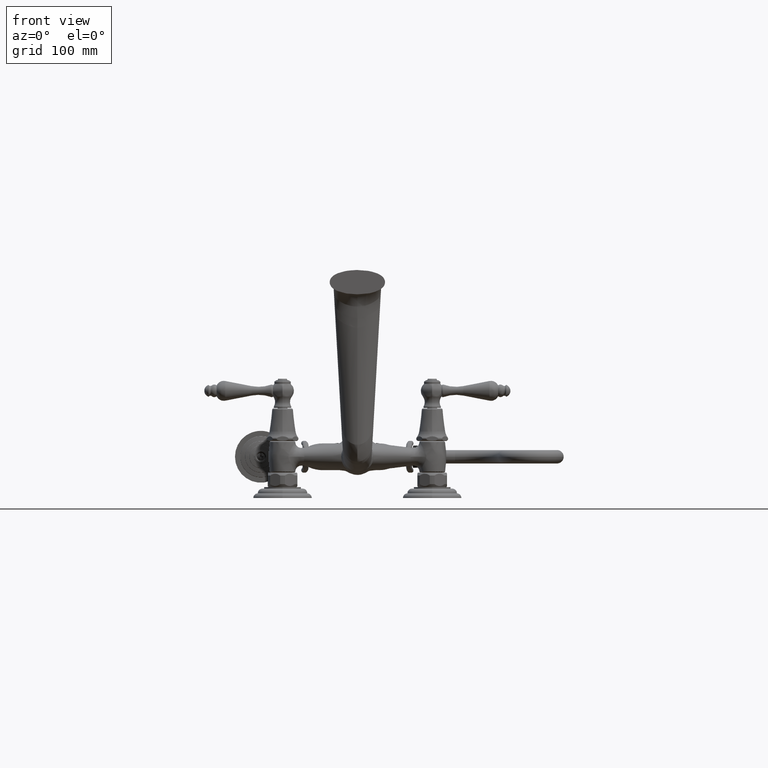
[diagram: clean part render]
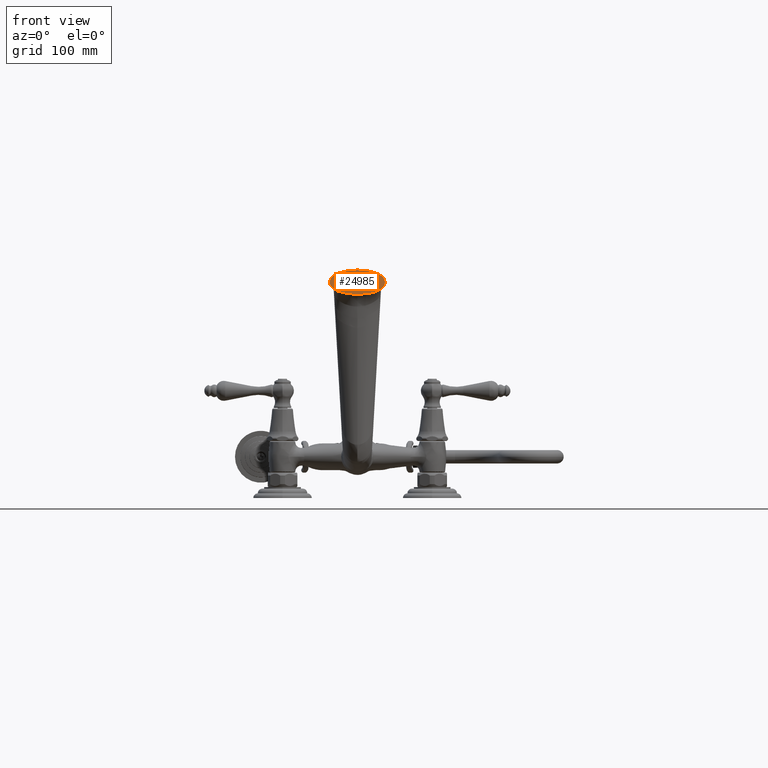
[diagram: same view with one face highlighted and labeled with its STEP entity id]
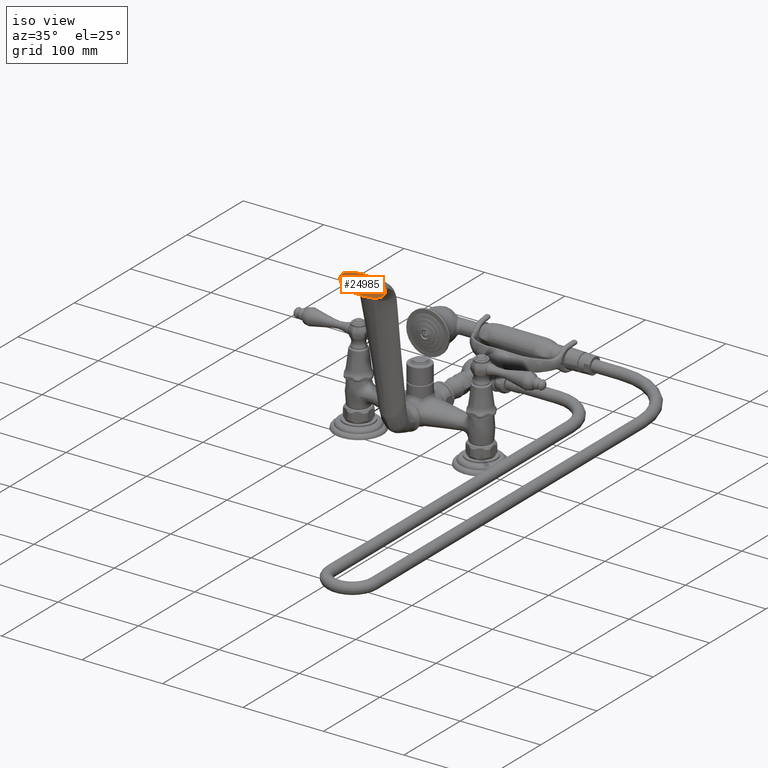
[diagram: same view with one face highlighted and labeled with its STEP entity id]
A machine part, front view. The second image highlights one B-rep face of the part: STEP entity #24985.
A second angle (iso view) of the same face is appended — the face is thin or edge-on in the first view.
In plain terms, the highlighted planar face has unit normal (-0, -1, 0).
Its self-contained STEP definition (entity closure, byte-faithful):
#1633=CARTESIAN_POINT('',(0.E0,-4.018219608768E0,7.4875E0));
#1634=CARTESIAN_POINT('',(1.145705412687E-1,-4.018219608768E0,7.4875E0));
#1635=CARTESIAN_POINT('',(2.770870818757E-1,-4.018219608768E0,
7.477530705318E0));
#1636=CARTESIAN_POINT('',(4.784828983717E-1,-4.018219608768E0,
7.446957646900E0));
#1637=CARTESIAN_POINT('',(6.228434812349E-1,-4.018219608768E0,
7.414538910767E0));
#1638=CARTESIAN_POINT('',(7.603363669806E-1,-4.018219608768E0,
7.370928259435E0));
#1639=CARTESIAN_POINT('',(8.700523918146E-1,-4.018219608768E0,
7.321575942116E0));
#1640=CARTESIAN_POINT('',(9.438095931145E-1,-4.018219608768E0,
7.274944642148E0));
#1641=CARTESIAN_POINT('',(9.858375419863E-1,-4.018219608768E0,
7.241946869991E0));
#1642=CARTESIAN_POINT('',(1.016006494526E0,-4.018219608768E0,7.214010341276E0));
#1643=CARTESIAN_POINT('',(1.046975724764E0,-4.018219608768E0,7.179051184174E0));
#1644=CARTESIAN_POINT('',(1.070882928838E0,-4.018219608768E0,7.143349161337E0));
#1645=CARTESIAN_POINT('',(1.088147087234E0,-4.018219608768E0,7.107903114323E0));
#1646=CARTESIAN_POINT('',(1.098880533812E0,-4.018219608768E0,7.078783815732E0));
#1647=CARTESIAN_POINT('',(1.107554965166E0,-4.018219608768E0,7.042981279996E0));
#1648=CARTESIAN_POINT('',(1.11E0,-4.018219608768E0,7.014880894259E0));
#1649=CARTESIAN_POINT('',(1.11E0,-4.018219608768E0,7.E0));
#1675=CARTESIAN_POINT('',(1.11E0,-4.018219608768E0,7.E0));
#1676=CARTESIAN_POINT('',(1.11E0,-4.018219608768E0,6.986263789915E0));
#1677=CARTESIAN_POINT('',(1.107759729550E0,-4.018219608768E0,6.958121187940E0));
#1678=CARTESIAN_POINT('',(1.099389287832E0,-4.018219608768E0,6.922916392895E0));
#1679=CARTESIAN_POINT('',(1.088486047576E0,-4.018219608768E0,6.892871531604E0));
#1680=CARTESIAN_POINT('',(1.071930700439E0,-4.018219608768E0,6.858595609934E0));
#1681=CARTESIAN_POINT('',(1.047837945254E0,-4.018219608768E0,6.822009994456E0));
#1682=CARTESIAN_POINT('',(1.017616518770E0,-4.018219608768E0,6.787648161510E0));
#1683=CARTESIAN_POINT('',(9.866876990796E-1,-4.018219608768E0,
6.758767080657E0));
#1684=CARTESIAN_POINT('',(9.446505470233E-1,-4.018219608768E0,
6.725585474317E0));
#1685=CARTESIAN_POINT('',(8.700572557677E-1,-4.018219608768E0,
6.678428242078E0));
#1686=CARTESIAN_POINT('',(7.603347146329E-1,-4.018219608768E0,
6.629070319140E0));
#1687=CARTESIAN_POINT('',(6.228439234125E-1,-4.018219608768E0,
6.585461469615E0));
#1688=CARTESIAN_POINT('',(4.784827820092E-1,-4.018219608768E0,6.553042253E0));
#1689=CARTESIAN_POINT('',(2.770871516931E-1,-4.018219608768E0,
6.522469354742E0));
#1690=CARTESIAN_POINT('',(1.145705412687E-1,-4.018219608768E0,6.5125E0));
#1691=CARTESIAN_POINT('',(6.097794581853E-14,-4.018219608768E0,6.5125E0));
#1721=CARTESIAN_POINT('',(6.097794581853E-14,-4.018219608768E0,6.5125E0));
#1722=CARTESIAN_POINT('',(-1.432131765852E-2,-4.018219608768E0,6.5125E0));
#1723=CARTESIAN_POINT('',(-4.277326461604E-2,-4.018219608768E0,
6.512707862590E0));
#1724=CARTESIAN_POINT('',(-9.892708860792E-2,-4.018219608768E0,
6.513941237520E0));
#1725=CARTESIAN_POINT('',(-1.677315502505E-1,-4.018219608768E0,
6.516989495161E0));
#1726=CARTESIAN_POINT('',(-2.481633762649E-1,-4.018219608768E0,
6.522974218486E0));
#1727=CARTESIAN_POINT('',(-3.525689562277E-1,-4.018219608768E0,
6.533930911040E0));
#1728=CARTESIAN_POINT('',(-4.522959853010E-1,-4.018219608768E0,
6.549065253578E0));
#1729=CARTESIAN_POINT('',(-5.497198829261E-1,-4.018219608768E0,
6.569040853971E0));
#1730=CARTESIAN_POINT('',(-6.200846243251E-1,-4.018219608768E0,
6.586345948137E0));
#1731=CARTESIAN_POINT('',(-6.907349403924E-1,-4.018219608768E0,
6.607001098413E0));
#1732=CARTESIAN_POINT('',(-7.577932942943E-1,-4.018219608768E0,
6.630319380358E0));
#1733=CARTESIAN_POINT('',(-8.253059788291E-1,-4.018219608768E0,
6.658338596486E0));
#1734=CARTESIAN_POINT('',(-8.886828541604E-1,-4.018219608768E0,
6.690396499186E0));
#1735=CARTESIAN_POINT('',(-9.405071818145E-1,-4.018219608768E0,
6.722954305989E0));
#1736=CARTESIAN_POINT('',(-9.808358472792E-1,-4.018219608768E0,
6.753847383102E0));
#1737=CARTESIAN_POINT('',(-1.011261133725E0,-4.018219608768E0,
6.781292956388E0));
#1738=CARTESIAN_POINT('',(-1.041934555282E0,-4.018219608768E0,
6.814624948968E0));
#1739=CARTESIAN_POINT('',(-1.066681365483E0,-4.018219608768E0,
6.849790792371E0));
#1740=CARTESIAN_POINT('',(-1.084545317290E0,-4.018219608768E0,
6.883921336340E0));
#1741=CARTESIAN_POINT('',(-1.094679346892E0,-4.018219608768E0,
6.909206048101E0));
#1742=CARTESIAN_POINT('',(-1.101449147945E0,-4.018219608768E0,
6.931923747021E0));
#1743=CARTESIAN_POINT('',(-1.107647116403E0,-4.018219608768E0,
6.959169029586E0));
#1744=CARTESIAN_POINT('',(-1.11E0,-4.018219608768E0,6.983261017761E0));
#1745=CARTESIAN_POINT('',(-1.11E0,-4.018219608768E0,7.E0));
#1775=CARTESIAN_POINT('',(-1.11E0,-4.018219608768E0,7.E0));
#1776=CARTESIAN_POINT('',(-1.11E0,-4.018219608768E0,7.012152919566E0));
#1777=CARTESIAN_POINT('',(-1.108292130878E0,-4.018219608768E0,
7.037012860235E0));
#1778=CARTESIAN_POINT('',(-1.101214243976E0,-4.018219608768E0,
7.070496512515E0));
#1779=CARTESIAN_POINT('',(-1.091681637468E0,-4.018219608768E0,
7.099171235816E0));
#1780=CARTESIAN_POINT('',(-1.079955248057E0,-4.018219608768E0,
7.125365689233E0));
#1781=CARTESIAN_POINT('',(-1.067142891886E0,-4.018219608768E0,
7.148304484685E0));
#1782=CARTESIAN_POINT('',(-1.047891687511E0,-4.018219608768E0,
7.177341464477E0));
#1783=CARTESIAN_POINT('',(-1.022409426175E0,-4.018219608768E0,
7.207367084167E0));
#1784=CARTESIAN_POINT('',(-9.917469560489E-1,-4.018219608768E0,
7.236848549064E0));
#1785=CARTESIAN_POINT('',(-9.480676810360E-1,-4.018219608768E0,
7.272219521134E0));
#1786=CARTESIAN_POINT('',(-8.938604036552E-1,-4.018219608768E0,
7.306736893693E0));
#1787=CARTESIAN_POINT('',(-8.270744142908E-1,-4.018219608768E0,
7.340873214280E0));
#1788=CARTESIAN_POINT('',(-7.613747307546E-1,-4.018219608768E0,
7.368308999696E0));
#1789=CARTESIAN_POINT('',(-6.925785279649E-1,-4.018219608768E0,
7.392414955120E0));
#1790=CARTESIAN_POINT('',(-6.238416211977E-1,-4.018219608768E0,
7.412640238414E0));
#1791=CARTESIAN_POINT('',(-5.516448784391E-1,-4.018219608768E0,
7.430526870994E0));
#1792=CARTESIAN_POINT('',(-4.543107997242E-1,-4.018219608768E0,
7.450628896697E0));
#1793=CARTESIAN_POINT('',(-3.525689361314E-1,-4.018219608768E0,
7.466069105648E0));
#1794=CARTESIAN_POINT('',(-2.481633800557E-1,-4.018219608768E0,
7.477025778366E0));
#1795=CARTESIAN_POINT('',(-1.677315492120E-1,-4.018219608768E0,
7.483010505701E0));
#1796=CARTESIAN_POINT('',(-9.892708873776E-2,-4.018219608768E0,
7.486058762372E0));
#1797=CARTESIAN_POINT('',(-4.277326459005E-2,-4.018219608768E0,
7.487292137432E0));
#1798=CARTESIAN_POINT('',(-1.432131765859E-2,-4.018219608768E0,7.4875E0));
#1799=CARTESIAN_POINT('',(0.E0,-4.018219608768E0,7.4875E0));
#18766=VERTEX_POINT('',#1633);
#18767=VERTEX_POINT('',#1649);
#18768=VERTEX_POINT('',#1691);
#18769=VERTEX_POINT('',#1745);
#24971=CARTESIAN_POINT('',(-5.502482966980E-8,-4.018219608768E0,
7.000000021413E0));
#24972=DIRECTION('',(-2.292250437718E-14,-1.E0,2.896161885959E-14));
#24973=DIRECTION('',(6.606362154512E-8,2.896161734524E-14,1.E0));
#24974=AXIS2_PLACEMENT_3D('',#24971,#24972,#24973);
#24975=PLANE('',#24974);
#24976=ORIENTED_EDGE('',*,*,#24961,.T.);
#24978=ORIENTED_EDGE('',*,*,#24977,.T.);
#24980=ORIENTED_EDGE('',*,*,#24979,.T.);
#24982=ORIENTED_EDGE('',*,*,#24981,.T.);
#24983=EDGE_LOOP('',(#24976,#24978,#24980,#24982));
#24984=FACE_OUTER_BOUND('',#24983,.F.);
#24985=ADVANCED_FACE('',(#24984),#24975,.T.);
#1650=B_SPLINE_CURVE_WITH_KNOTS('',3,(#1633,#1634,#1635,#1636,#1637,#1638,#1639,
#1640,#1641,#1642,#1643,#1644,#1645,#1646,#1647,#1648,#1649),.UNSPECIFIED.,.F.,
.F.,(4,1,1,1,1,1,1,1,1,1,1,1,1,1,4),(0.E0,2.5E-1,3.75E-1,5.E-1,6.25E-1,7.5E-1,
8.125E-1,8.425E-1,8.75E-1,9.05E-1,9.375E-1,9.525E-1,9.6875E-1,9.8375E-1,1.E0),
.UNSPECIFIED.);
#1692=B_SPLINE_CURVE_WITH_KNOTS('',3,(#1675,#1676,#1677,#1678,#1679,#1680,#1681,
#1682,#1683,#1684,#1685,#1686,#1687,#1688,#1689,#1690,#1691),.UNSPECIFIED.,.F.,
.F.,(4,1,1,1,1,1,1,1,1,1,1,1,1,1,4),(0.E0,1.5E-2,3.125E-2,4.625E-2,6.25E-2,
9.25E-2,1.25E-1,1.55E-1,1.875E-1,2.5E-1,3.75E-1,5.E-1,6.25E-1,7.5E-1,1.E0),
.UNSPECIFIED.);
#1746=B_SPLINE_CURVE_WITH_KNOTS('',3,(#1721,#1722,#1723,#1724,#1725,#1726,#1727,
#1728,#1729,#1730,#1731,#1732,#1733,#1734,#1735,#1736,#1737,#1738,#1739,#1740,
#1741,#1742,#1743,#1744,#1745),.UNSPECIFIED.,.F.,.F.,(4,1,1,1,1,1,1,1,1,1,1,1,1,
1,1,1,1,1,1,1,1,1,4),(0.E0,3.125E-2,6.25E-2,1.25E-1,1.875E-1,2.5E-1,3.75E-1,
4.35E-1,5.E-1,5.6E-1,6.25E-1,6.85E-1,7.5E-1,8.076E-1,8.37552E-1,8.7E-1,
8.99952E-1,9.324E-1,9.4797504E-1,9.64848E-1,9.729470208E-1,9.8172096E-1,1.E0),
.UNSPECIFIED.);
#1800=B_SPLINE_CURVE_WITH_KNOTS('',3,(#1775,#1776,#1777,#1778,#1779,#1780,#1781,
#1782,#1783,#1784,#1785,#1786,#1787,#1788,#1789,#1790,#1791,#1792,#1793,#1794,
#1795,#1796,#1797,#1798,#1799),.UNSPECIFIED.,.F.,.F.,(4,1,1,1,1,1,1,1,1,1,1,1,1,
1,1,1,1,1,1,1,1,1,4),(0.E0,1.327104E-2,2.7648E-2,4.202496E-2,5.76E-2,
7.197696E-2,8.7552E-2,1.2E-1,1.49952E-1,1.824E-1,2.5E-1,3.1E-1,3.75E-1,4.35E-1,
5.E-1,5.6E-1,6.25E-1,7.5E-1,8.125E-1,8.75E-1,9.375E-1,9.6875E-1,1.E0),
.UNSPECIFIED.);
#24961=EDGE_CURVE('',#18766,#18767,#1650,.T.);
#24977=EDGE_CURVE('',#18767,#18768,#1692,.T.);
#24979=EDGE_CURVE('',#18768,#18769,#1746,.T.);
#24981=EDGE_CURVE('',#18769,#18766,#1800,.T.);